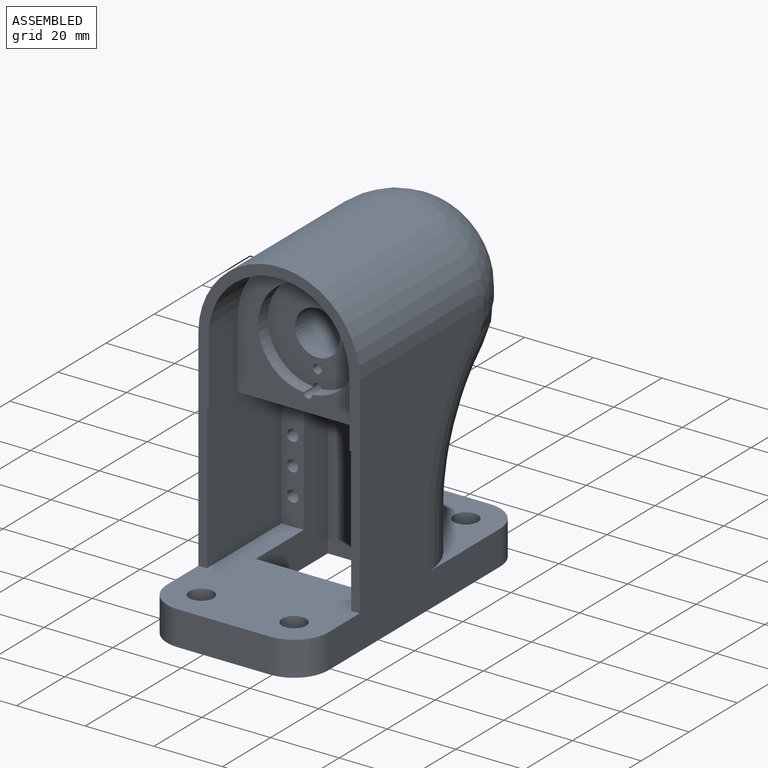
[diagram: assembled view]
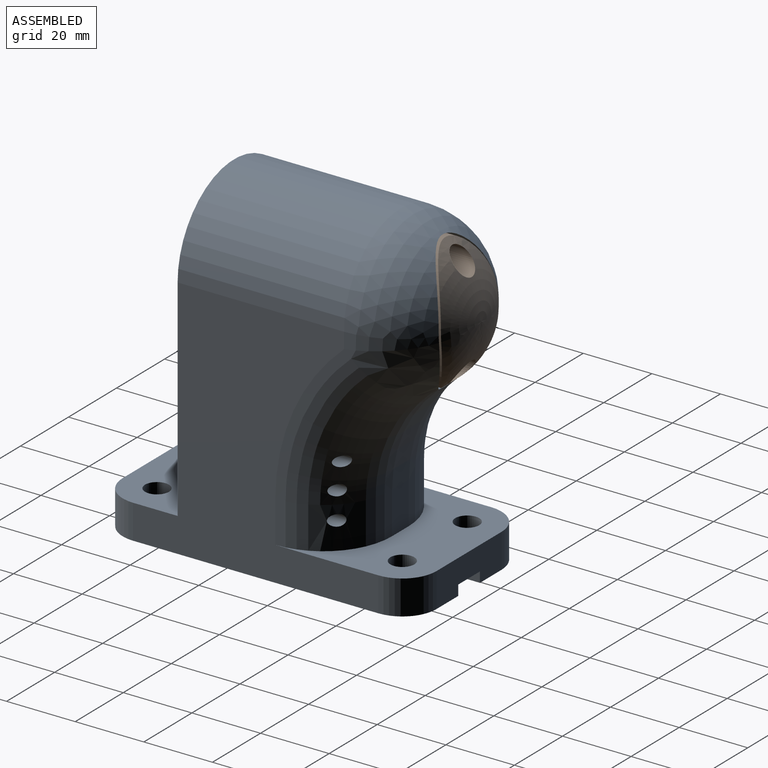
[diagram: assembled view, second angle]
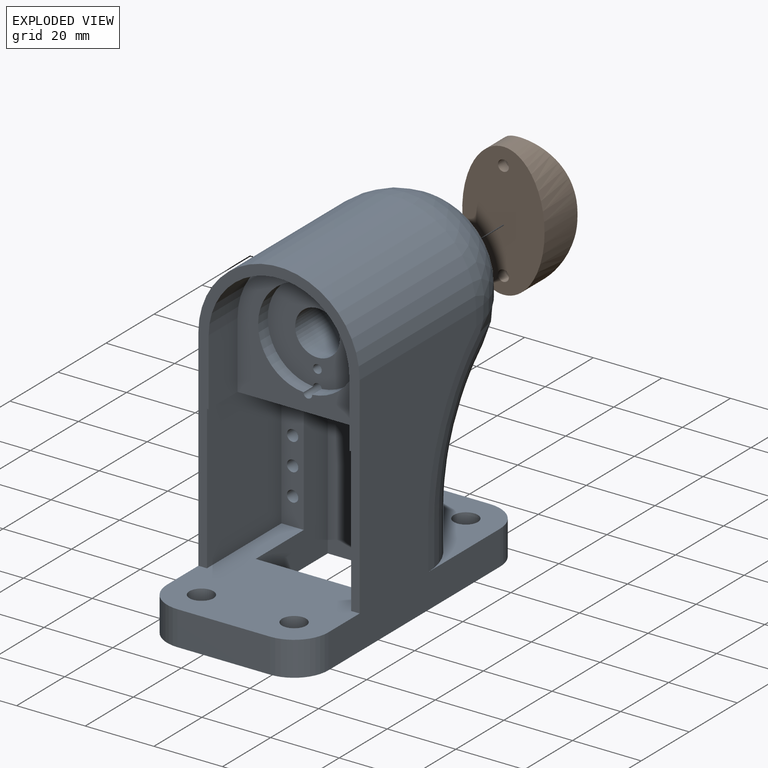
[diagram: exploded view]
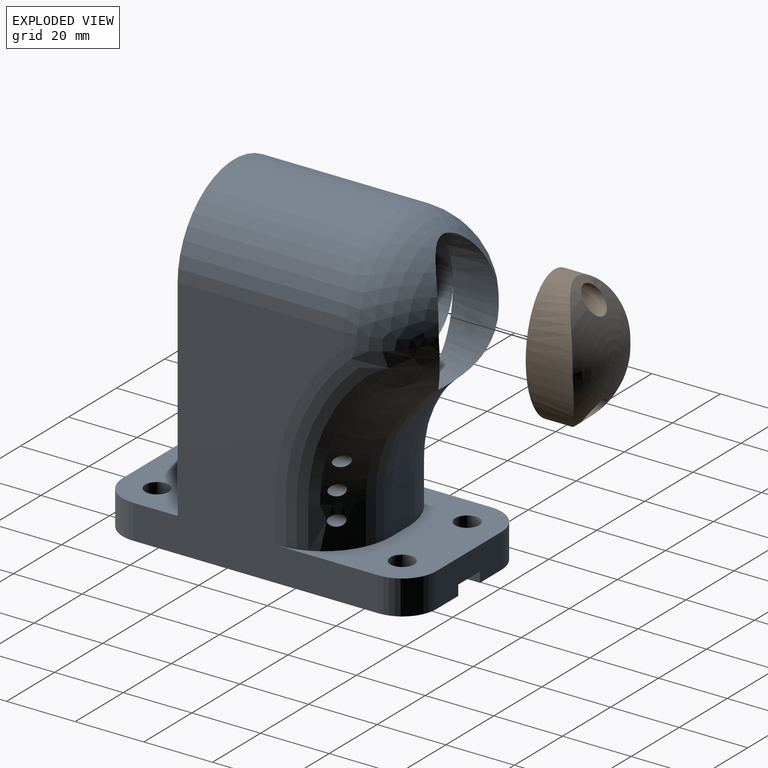
[diagram: exploded view, second angle]
ASSEMBLY  parts=2 mates=2
PART A: 65 faces, bbox 47.7x94.5x95 mm
  f0: plane 91.5x47mm, normal (0,0,-1), area 2943.2mm2, adj f1,f2,f21,f22,f39,f40,f52,f53
  f1: plane 27x10mm, normal (0,1,0), area 243mm2, adj f0,f19,f55,f56,f62,f63,f64
  f2: plane 52x29mm, normal (0,-1,0), area 1481mm2, adj f0,f35,f39,f40,f62,f63,f64
  f3: plane 54x47mm, normal (0,0,1), area 1683.1mm2, adj f16,f17,f21,f22,f36,f37,f38,f39
  f4: cylinder r=14.5mm len=28.89mm, axis (0,-1,0), area 172.2mm2, adj f18,f30,f50,f51
  f5: cylinder r=23.5mm len=19.93mm, axis (0,0,-1), area 76.3mm2, adj f6,f11,f12,f21,f47
  f6: sphere r=23.5mm, area 1269.5mm2, adj f5,f7,f23,f47
  f7: cylinder r=23.5mm len=19.93mm, axis (0,0,1), area 76.3mm2, adj f6,f9,f10,f22,f47
  f8: cylinder r=40mm len=30.1mm, axis (-1,0,0), area 233.1mm2, adj f10,f12,f14,f20,f24,f47
  f9: bspline ~18.42x18.42mm, area 55.4mm2, adj f7,f10,f47
  f10: bspline ~21.41x21.28mm, area 234.2mm2, adj f7,f8,f9,f24,f47
  f11: bspline ~18.42x18.42mm, area 55.4mm2, adj f5,f12,f47
  f12: bspline ~21.19x21.12mm, area 234.2mm2, adj f5,f8,f11,f14,f47
  f13: cylinder r=12.5mm len=25mm, axis (0,-1,0), area 1963.5mm2, adj f34,f48,f49
  f14: torus R=60mm, axis (1,0,0), area 1223.9mm2, adj f8,f12,f15,f21,f45,f46
  f15: cylinder r=20mm len=20mm, axis (0,0,-1), area 370.4mm2, adj f14,f19,f20,f21,f44
  f16: plane 42x6.5mm, normal (0,-1,0), area 247.3mm2, adj f3,f35,f37,f40,f44,f45,f46
  f17: plane 85x47mm, normal (0,-1,0), area 534.3mm2, adj f3,f21,f22,f23,f26,f27,f28,f35
  f18: plane 41x40mm, normal (0,-1,0), area 794.1mm2, adj f4,f26,f27,f28,f29,f35,f50,f51
  f19: plane 47x40mm, normal (0,0,1), area 991.8mm2, adj f1,f15,f20,f21,f22,f25,f55,f56
  f20: plane 12.18x7mm, normal (0,1,0), area 85.3mm2, adj f8,f15,f19,f25
  f21: plane 71.5x71.5mm, normal (1,0,0), area 2834.6mm2, adj f0,f3,f5,f14,f15,f17,f19,f23
  f22: plane 71.5x71.5mm, normal (-1,0,0), area 2834.6mm2, adj f0,f3,f7,f17,f19,f23,f24,f25
  f23: cylinder r=23.5mm len=48.5mm, axis (0,1,0), area 3580.6mm2, adj f6,f17,f21,f22
  f24: torus R=60mm, axis (1,0,0), area 1223.9mm2, adj f8,f10,f22,f25,f41,f43
  f25: cylinder r=20mm len=20mm, axis (0,0,1), area 370.4mm2, adj f19,f20,f22,f24,f42
  f26: plane 19.5x12mm, normal (1,0,0), area 234mm2, adj f17,f18,f28,f35
  f27: plane 19.5x12mm, normal (-1,0,0), area 234mm2, adj f17,f18,f28,f35
  f28: cylinder r=20.5mm len=41mm, axis (0,-1,0), area 772.8mm2, adj f17,f18,f26,f27
  f29: cylinder r=14.5mm len=28.89mm, axis (0,-1,0), area 172.2mm2, adj f18,f30,f50,f51
  f30: plane 29x28.89mm, normal (0,-1,0), area 513.2mm2, adj f4,f29,f31,f32,f33,f50,f51
  f31: cylinder r=6.5mm len=14mm, axis (0,-1,0), area 571.8mm2, adj f30,f34
  f32: cylinder r=1.25mm len=14mm, axis (0,-1,0), area 110mm2, adj f30,f34
  f33: cylinder r=1.25mm len=14mm, axis (0,-1,0), area 110mm2, adj f30,f34
  f34: plane 25x25mm, normal (0,1,0), area 348.3mm2, adj f13,f31,f32,f33
  f35: plane 42x41mm, normal (0,0,-1), area 1100mm2, adj f2,f16,f17,f18,f26,f27,f36,f37
  f36: plane 42x6.5mm, normal (0,-1,0), area 247.3mm2, adj f3,f35,f38,f39,f41,f42,f43
  f37: plane 42x31mm, normal (-1,0,0), area 1302mm2, adj f3,f16,f17,f35
  f38: plane 42x31mm, normal (1,0,0), area 1302mm2, adj f3,f17,f35,f36
  f39: plane 52x30mm, normal (1,0,0), area 720mm2, adj f0,f2,f3,f35,f36,f57
  f40: plane 52x30mm, normal (-1,0,0), area 720mm2, adj f0,f2,f3,f16,f35,f57
  f41: cylinder r=1.65mm len=13.2mm, axis (0,-1,0), area 120.5mm2, adj f24,f36
  f42: cylinder r=1.65mm len=13.03mm, axis (0,-1,0), area 118.5mm2, adj f25,f36
  f43: cylinder r=1.65mm len=14.71mm, axis (0,-1,0), area 134.8mm2, adj f24,f36
  f44: cylinder r=1.65mm len=13.03mm, axis (0,-1,0), area 118.5mm2, adj f15,f16
  f45: cylinder r=1.65mm len=13.2mm, axis (0,-1,0), area 120.5mm2, adj f14,f16
  f46: cylinder r=1.65mm len=14.71mm, axis (0,-1,0), area 134.7mm2, adj f14,f16
  f47: extruded ~40x25mm, area 1080.8mm2, adj f5,f6,f7,f8,f9,f10,f11,f12
  f48: plane 25x20mm, normal (0,1,0), area 142.4mm2, adj f13,f47,f51
  f49: plane 25x20mm, normal (0,1,0), area 142.4mm2, adj f13,f47,f50
  f50: cylinder r=1.25mm len=43mm, axis (0,1,0), area 322.4mm2, adj f4,f18,f29,f30,f49
  f51: cylinder r=1.25mm len=43mm, axis (0,1,0), area 322.4mm2, adj f4,f18,f29,f30,f48
  f52: plane 27x10mm, normal (0,-1,0), area 270mm2, adj f0,f3,f53,f54
  f53: cylinder r=10mm len=10mm, axis (0,0,1), area 157.1mm2, adj f0,f3,f21,f52
  f54: cylinder r=10mm len=10mm, axis (0,0,-1), area 157.1mm2, adj f0,f3,f22,f52
  f55: cylinder r=10mm len=10mm, axis (0,0,1), area 157.1mm2, adj f0,f1,f19,f22
  f56: cylinder r=10mm len=10mm, axis (0,0,-1), area 157.1mm2, adj f0,f1,f19,f21
  f57: plane 29x10mm, normal (0,1,0), area 290mm2, adj f0,f3,f39,f40
  f58: cylinder r=3.5mm len=10mm, axis (0,0,1), area 219.9mm2, adj f0,f3
  f59: cylinder r=3.5mm len=10mm, axis (0,0,1), area 219.9mm2, adj f0,f3
  f60: cylinder r=3.5mm len=10mm, axis (0,0,1), area 219.9mm2, adj f0,f19
  f61: cylinder r=3.5mm len=10mm, axis (0,0,1), area 219.9mm2, adj f0,f19
  f62: plane 27.5x3mm, normal (1,0,0), area 82.5mm2, adj f0,f1,f2,f64
  f63: plane 27.5x3mm, normal (-1,0,0), area 82.5mm2, adj f0,f1,f2,f64
  f64: plane 27.5x9mm, normal (0,0,-1), area 247.5mm2, adj f1,f2,f62,f63
PART B: 18 faces, bbox 39x17x39 mm
  f0: cylinder r=23.5mm len=11.44mm, axis (1,0,0), area 19.2mm2, adj f6,f7,f17
  f1: cylinder r=23.5mm len=5.44mm, axis (1,0,0), area 4.9mm2, adj f4,f6,f7,f17
  f2: sphere r=23.5mm, area 380.1mm2, adj f3,f9,f10,f15
  f3: cylinder r=23.5mm len=12mm, axis (0,0,-1), area 11.2mm2, adj f2,f6,f10
  f4: cylinder r=40mm len=6.52mm, axis (1,0,0), area 9.7mm2, adj f1,f5,f8,f10
  f5: bspline ~5.5x2.45mm, area 2.7mm2, adj f4,f6,f10
  f6: bspline ~18.25x18.25mm, area 154.6mm2, adj f0,f1,f3,f5,f10,f17
  f7: bspline ~18.25x18.25mm, area 154.6mm2, adj f0,f1,f8,f9,f10,f17
  f8: bspline ~5.5x2.45mm, area 2.7mm2, adj f4,f7,f10
  f9: cylinder r=23.5mm len=12mm, axis (0,0,1), area 11.2mm2, adj f2,f7,f10
  f10: extruded ~39x24mm, area 1105.9mm2, adj f2,f3,f4,f5,f6,f7,f8,f9
  f11: plane 39x24mm, normal (0,-1,0), area 719mm2, adj f10,f12,f13
  f12: cylinder r=1.6mm len=3.2mm, axis (0,-1,0), area 30.2mm2, adj f11,f16
  f13: cylinder r=1.6mm len=3.2mm, axis (0,-1,0), area 30.2mm2, adj f11,f14
  f14: plane 7x7mm, normal (0,1,0), area 30.4mm2, adj f13,f15
  f15: cylinder r=3.5mm len=11.27mm, axis (0,-1,0), area 188mm2, adj f2,f14
  f16: plane 7x7mm, normal (0,1,0), area 30.4mm2, adj f12,f17
  f17: cylinder r=3.5mm len=11.27mm, axis (0,-1,0), area 191.4mm2, adj f0,f1,f6,f7,f16
PLACE A t=(-34.87,20.32,18.57)mm
PLACE B t=(-34.87,20.32,18.57)mm
MATE parallel A.f49 <-> B.f11  axis (0,1,0) through (-11.37,83.32,103.84)mm
MATE cylindrical B.f13 <-> A.f50  axis (0,1,0) through (-11.37,86.32,104.57)mm
